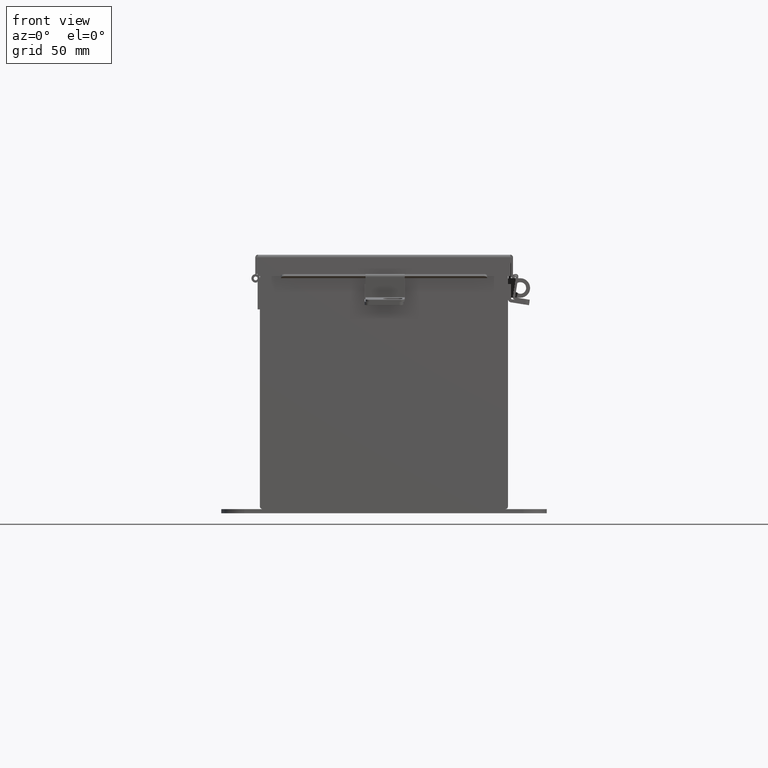
[diagram: clean part render]
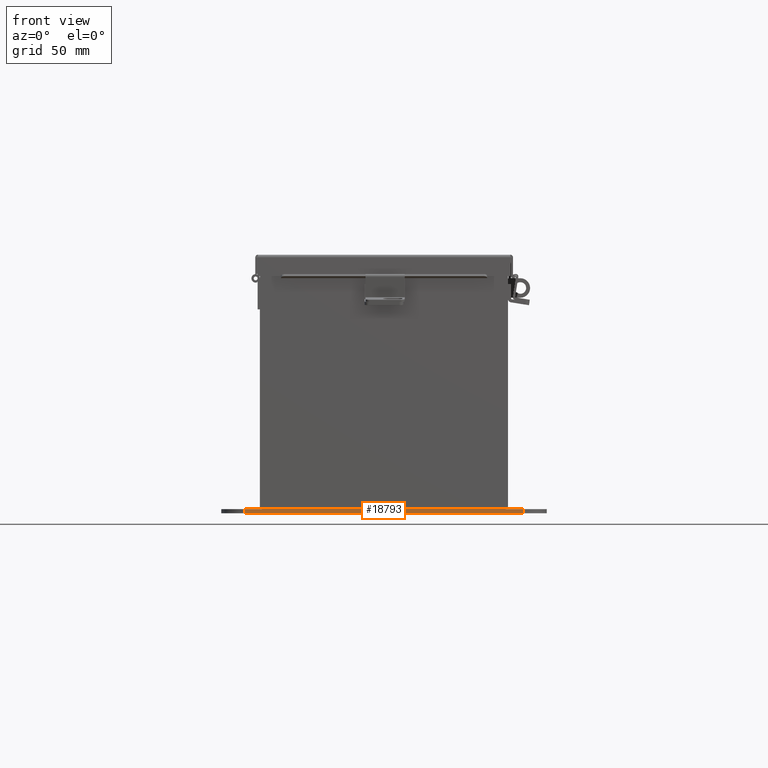
[diagram: same view with one face highlighted and labeled with its STEP entity id]
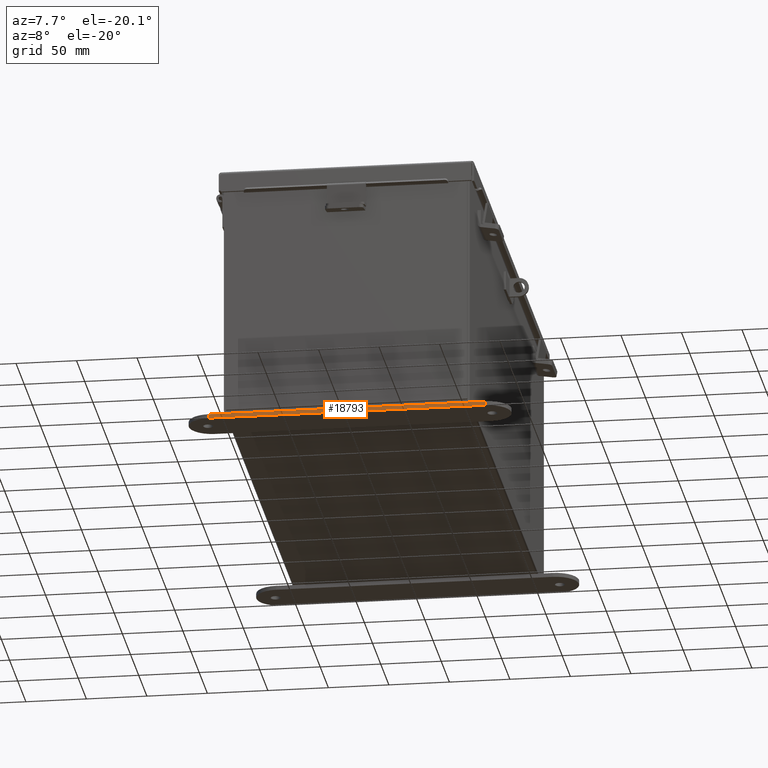
[diagram: same view with one face highlighted and labeled with its STEP entity id]
A machine part, front view. The second image highlights one B-rep face of the part: STEP entity #18793.
A second angle (auxiliary view) of the same face is appended — the face is thin or edge-on in the first view.
In plain terms, the highlighted planar face has unit normal (-0, -1, 0).
Its self-contained STEP definition (entity closure, byte-faithful):
#322 = AXIS2_PLACEMENT_3D ( 'NONE', #3714, #14132, #5190 ) ;
#325 = ORIENTED_EDGE ( 'NONE', *, *, #11560, .F. ) ;
#358 = VERTEX_POINT ( 'NONE', #12419 ) ;
#649 = VERTEX_POINT ( 'NONE', #17519 ) ;
#1541 = EDGE_CURVE ( 'NONE', #12335, #358, #11340, .T. ) ;
#2273 = EDGE_CURVE ( 'NONE', #358, #649, #4118, .T. ) ;
#3539 = ORIENTED_EDGE ( 'NONE', *, *, #2273, .T. ) ;
#3714 = CARTESIAN_POINT ( 'NONE',  ( -4.499999999999999100, -0.3379059350503871900, -0.1345000000000000100 ) ) ;
#4118 = LINE ( 'NONE', #13657, #15553 ) ;
#5190 = DIRECTION ( 'NONE',  ( 1.000000000000000000, -1.214154663850783900E-016, 0.0000000000000000000 ) ) ;
#5243 = FACE_OUTER_BOUND ( 'NONE', #11479, .T. ) ;
#5823 = LINE ( 'NONE', #18138, #9322 ) ;
#6221 = CARTESIAN_POINT ( 'NONE',  ( -4.499999999999999100, -0.3379059350503871900, 0.0000000000000000000 ) ) ;
#7405 = VECTOR ( 'NONE', #13883, 39.37007874015748100 ) ;
#7674 = VERTEX_POINT ( 'NONE', #14615 ) ;
#7732 = DIRECTION ( 'NONE',  ( 1.000000000000000000, -1.214154663850783900E-016, 0.0000000000000000000 ) ) ;
#9322 = VECTOR ( 'NONE', #16691, 39.37007874015748100 ) ;
#9661 = ORIENTED_EDGE ( 'NONE', *, *, #1541, .T. ) ;
#11340 = LINE ( 'NONE', #14230, #7405 ) ;
#11479 = EDGE_LOOP ( 'NONE', ( #16529, #325, #9661, #3539 ) ) ;
#11560 = EDGE_CURVE ( 'NONE', #12335, #7674, #5823, .T. ) ;
#11802 = DIRECTION ( 'NONE',  ( 0.0000000000000000000, 0.0000000000000000000, 1.000000000000000000 ) ) ;
#11838 = VECTOR ( 'NONE', #7732, 39.37007874015748100 ) ;
#12218 = EDGE_CURVE ( 'NONE', #7674, #649, #14919, .T. ) ;
#12335 = VERTEX_POINT ( 'NONE', #12392 ) ;
#12392 = CARTESIAN_POINT ( 'NONE',  ( -4.499999999999999100, -0.3379059350503871900, -0.1345000000000000100 ) ) ;
#12419 = CARTESIAN_POINT ( 'NONE',  ( 4.499999999999999100, -0.3379059350503883000, -0.1345000000000000100 ) ) ;
#13657 = CARTESIAN_POINT ( 'NONE',  ( 4.499999999999999100, -0.3379059350503883000, -0.1345000000000000100 ) ) ;
#13883 = DIRECTION ( 'NONE',  ( 1.000000000000000000, -1.214154663850783900E-016, 0.0000000000000000000 ) ) ;
#14132 = DIRECTION ( 'NONE',  ( -1.214154663850783900E-016, -1.000000000000000000, 0.0000000000000000000 ) ) ;
#14230 = CARTESIAN_POINT ( 'NONE',  ( -4.499999999999999100, -0.3379059350503871900, -0.1345000000000000100 ) ) ;
#14615 = CARTESIAN_POINT ( 'NONE',  ( -4.499999999999999100, -0.3379059350503871900, 0.0000000000000000000 ) ) ;
#14919 = LINE ( 'NONE', #6221, #11838 ) ;
#15553 = VECTOR ( 'NONE', #11802, 39.37007874015748100 ) ;
#16529 = ORIENTED_EDGE ( 'NONE', *, *, #12218, .F. ) ;
#16691 = DIRECTION ( 'NONE',  ( 0.0000000000000000000, 0.0000000000000000000, 1.000000000000000000 ) ) ;
#17519 = CARTESIAN_POINT ( 'NONE',  ( 4.499999999999999100, -0.3379059350503883000, 0.0000000000000000000 ) ) ;
#18138 = CARTESIAN_POINT ( 'NONE',  ( -4.499999999999999100, -0.3379059350503871900, -0.1345000000000000100 ) ) ;
#18610 = PLANE ( 'NONE',  #322 ) ;
#18793 = ADVANCED_FACE ( 'NONE', ( #5243 ), #18610, .T. ) ;